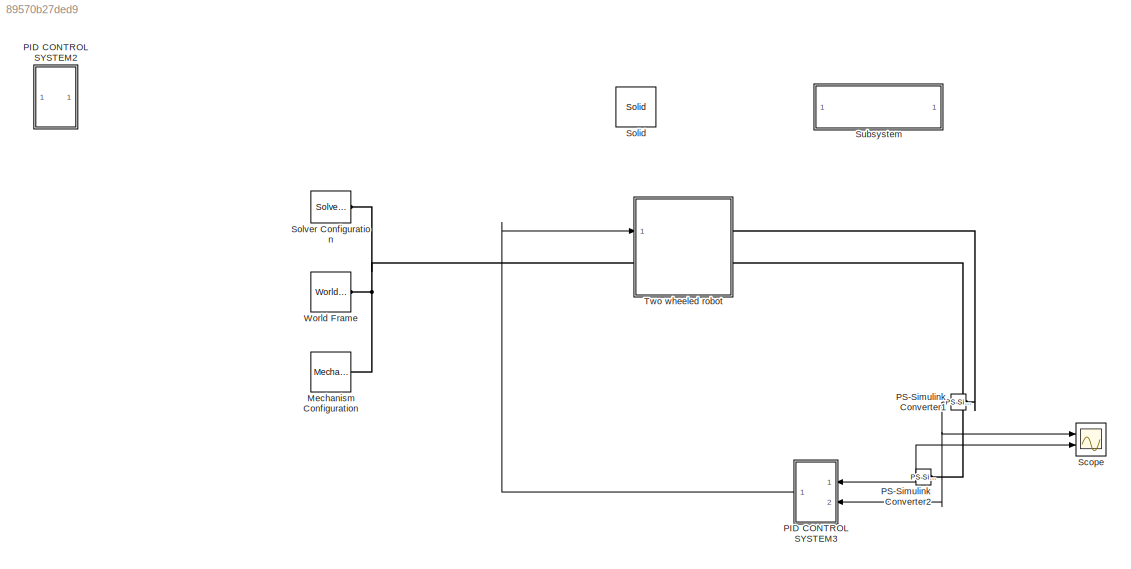
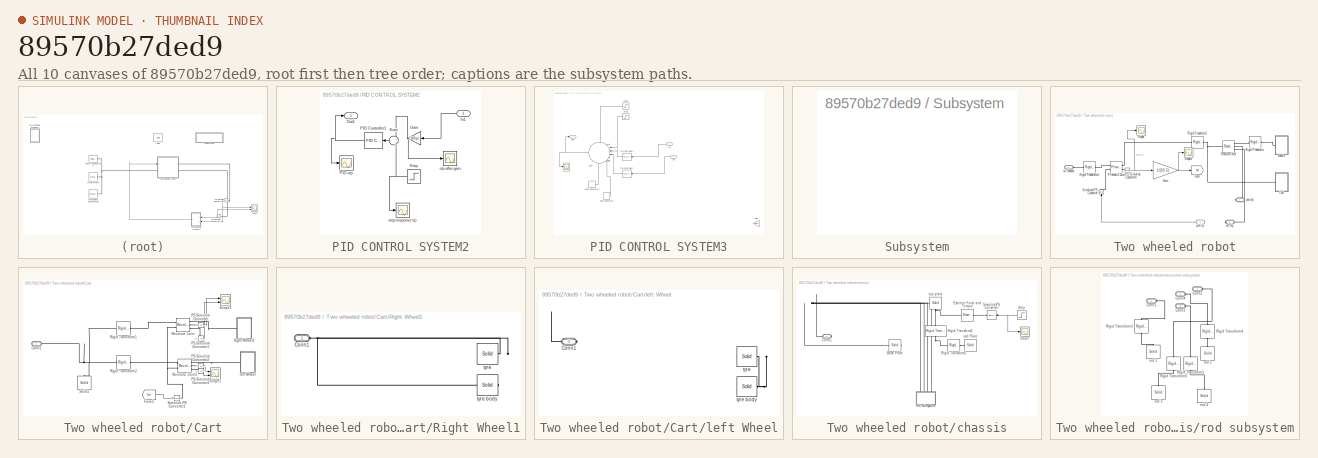
[diagram: thumbnail index - all 10 canvases of the model, root first then tree order]
MODEL slx_89570b27ded9
KIND model
CONFIG AbsTol = auto
CONFIG EnableMultiTasking = on
CONFIG FixedStep = auto
CONFIG MaxStep = auto
CONFIG MinStep = auto
CONFIG RelTol = 1e-3
CONFIG SampleTimeConstraint = Unconstrained
CONFIG Solver = VariableStepAuto
CONFIG SolverName = VariableStepAuto
CONFIG StartTime = 0.0
CONFIG StopTime = 10
BLOCK [Reference] Mechanism Configuration  REF=sm_lib/Utilities/Mechanism
Configuration
  Ports = [0, 0, 0, 0, 0, 0, 1]
  SourceBlock = sm_lib/Utilities/Mechanism\nConfiguration
  SourceProductBaseCode = MS
  SourceProductName = Simscape Multibody
  SourceType = Mechanism\nConfiguration
BLOCK [SubSystem] PID CONTROL SYSTEM2
  Commented = on
  Ports = [1, 1]
  RequestExecContextInheritance = off
BLOCK [Scope] PID CONTROL SYSTEM2/	PID o//p
  Floating = off
  NumInputPorts = 1
  Ports = [1]
  ScopeSpecificationString = Simulink.scopes.TimeScopeBlockCfg('CurrentConfiguration', extmgr.ConfigurationSet(extmgr.Configuration('Core','General UI',true),extmgr.Configuration('Core','Source UI',true),extmgr.Configuration('Sources','WiredSimulink',true),extmgr.Configuration('Visuals','Time Domain',true,'SerializedDisplays',{struct('MinYLimReal','-3135.24324','MaxYLimReal','3138.49141','YLabelReal','','MinYLimMag','  0.0000...<+1368ch>
BLOCK [Gain] PID CONTROL SYSTEM2/Gain
  Gain = 180/pi
  OutDataTypeStr = Inherit: Inherit via internal rule
  ParamDataTypeStr = Inherit: Inherit via internal rule
  SaturateOnIntegerOverflow = off
BLOCK [Inport] PID CONTROL SYSTEM2/In1
  IconDisplay = Port number
BLOCK [Outport] PID CONTROL SYSTEM2/Out1
  IconDisplay = Port number
BLOCK [Reference] PID CONTROL SYSTEM2/PID Controller1  REF=simulink/Continuous/PID Controller
  Ports = [1, 1]
  SourceBlock = simulink/Continuous/PID Controller
  SourceProductBaseCode = SL
  SourceProductName = Simulink
  SourceType = PID 1dof
BLOCK [Step] PID CONTROL SYSTEM2/Step
  After = 0
  Before = 1
  SampleTime = 0
  Time = 0.1
BLOCK [Sum] PID CONTROL SYSTEM2/Sum
  IconShape = round
  InputSameDT = off
  Inputs = -+
  OutDataTypeStr = Inherit: Inherit via internal rule
  Ports = [2, 1]
  SaturateOnIntegerOverflow = off
BLOCK [Scope] PID CONTROL SYSTEM2/o//p after gain 
  Floating = off
  NumInputPorts = 1
  Ports = [1]
  ScopeSpecificationString = Simulink.scopes.TimeScopeBlockCfg('CurrentConfiguration', extmgr.ConfigurationSet(extmgr.Configuration('Core','General UI',true),extmgr.Configuration('Core','Source UI',true),extmgr.Configuration('Sources','WiredSimulink',true,'DataLoggingVariableName','ScopeData2'),extmgr.Configuration('Visuals','Time Domain',true,'SerializedDisplays',{struct('MinYLimReal','-151.46736','MaxYLimReal','16.82971','Y...<+1404ch>
BLOCK [Scope] PID CONTROL SYSTEM2/step response i//p
  Floating = off
  NumInputPorts = 1
  Ports = [1]
  ScopeSpecificationString = Simulink.scopes.TimeScopeBlockCfg('CurrentConfiguration', extmgr.ConfigurationSet(extmgr.Configuration('Core','General UI',true),extmgr.Configuration('Core','Source UI',true),extmgr.Configuration('Sources','WiredSimulink',true,'DataLoggingVariableName','ScopeData3'),extmgr.Configuration('Visuals','Time Domain',true,'SerializedDisplays',{struct('MinYLimReal','-0.125','MaxYLimReal','1.125','YLabelRe...<+1351ch>
BLOCK [SubSystem] PID CONTROL SYSTEM3
  Ports = [2, 1]
  RequestExecContextInheritance = off
BLOCK [Scope] PID CONTROL SYSTEM3/	PID o//p
  Floating = off
  NumInputPorts = 1
  Ports = [1]
  ScopeSpecificationString = Simulink.scopes.TimeScopeBlockCfg('CurrentConfiguration', extmgr.ConfigurationSet(extmgr.Configuration('Core','General UI',true),extmgr.Configuration('Core','Source UI',true),extmgr.Configuration('Sources','WiredSimulink',true),extmgr.Configuration('Visuals','Time Domain',true,'SerializedDisplays',{struct('MinYLimReal','-3135.24324','MaxYLimReal','3138.49141','YLabelReal','','MinYLimMag','  0.0000...<+1368ch>
BLOCK [Gain] PID CONTROL SYSTEM3/Gain
  Commented = on
  Gain = 180/pi
  OutDataTypeStr = Inherit: Inherit via internal rule
  ParamDataTypeStr = Inherit: Inherit via internal rule
  SaturateOnIntegerOverflow = off
BLOCK [Inport] PID CONTROL SYSTEM3/In1
  IconDisplay = Port number
BLOCK [Inport] PID CONTROL SYSTEM3/In2
  IconDisplay = Port number
  Port = 2
BLOCK [Outport] PID CONTROL SYSTEM3/Out1
  IconDisplay = Port number
BLOCK [Reference] PID CONTROL SYSTEM3/PID Controller1  REF=simulink/Continuous/PID Controller
  Ports = [1, 1]
  SourceBlock = simulink/Continuous/PID Controller
  SourceProductBaseCode = SL
  SourceProductName = Simulink
  SourceType = PID 1dof
BLOCK [Reference] PID CONTROL SYSTEM3/PID Controller2  REF=simulink/Continuous/PID Controller
  Ports = [1, 1]
  SourceBlock = simulink/Continuous/PID Controller
  SourceProductBaseCode = SL
  SourceProductName = Simulink
  SourceType = PID 1dof
BLOCK [DiscretePulseGenerator] PID CONTROL SYSTEM3/Pulse Generator
  Amplitude = 1000
  Period = 10
  Ports = [0, 1]
  PulseType = Time based
  PulseWidth = 50
BLOCK [DiscretePulseGenerator] PID CONTROL SYSTEM3/Pulse Generator1
  Amplitude = -1000
  Period = 10
  PhaseDelay = 0.5
  Ports = [0, 1]
  PulseType = Time based
  PulseWidth = 50
BLOCK [Step] PID CONTROL SYSTEM3/Step
  After = 100
  SampleTime = 0
  Time = 0.5
BLOCK [Step] PID CONTROL SYSTEM3/Step1
  After = 0
  Before = 100
  SampleTime = 0
  Time = 0.1
BLOCK [Sum] PID CONTROL SYSTEM3/Sum
  IconShape = round
  InputSameDT = off
  Inputs = ++--++
  OutDataTypeStr = Inherit: Inherit via internal rule
  Ports = [6, 1]
  SaturateOnIntegerOverflow = off
BLOCK [Reference] PS-Simulink Converter1  REF=nesl_utility/PS-Simulink
Converter
  Ports = [0, 1, 0, 0, 0, 1]
  SourceBlock = nesl_utility/PS-Simulink\nConverter
  SourceProductBaseCode = SS
  SourceProductName = Simscape
  SourceType = PS-Simulink\nConverter
BLOCK [Reference] PS-Simulink Converter2  REF=nesl_utility/PS-Simulink
Converter
  Ports = [0, 1, 0, 0, 0, 1]
  SourceBlock = nesl_utility/PS-Simulink\nConverter
  SourceProductBaseCode = SS
  SourceProductName = Simscape
  SourceType = PS-Simulink\nConverter
BLOCK [Scope] Scope
  Floating = off
  NumInputPorts = 2
  Ports = [2]
  ScopeSpecificationString = Simulink.scopes.TimeScopeBlockCfg('CurrentConfiguration', extmgr.ConfigurationSet(extmgr.Configuration('Core','General UI',true),extmgr.Configuration('Core','Source UI',true),extmgr.Configuration('Sources','WiredSimulink',true,'DataLoggingVariableName','ScopeData1'),extmgr.Configuration('Visuals','Time Domain',true,'SerializedDisplays',{struct('MinYLimReal','-0.04495','MaxYLimReal','0.04905','YLab...<+2151ch>
BLOCK [Reference] Solid  REF=sm_lib/Body Elements/Solid
  Commented = on
  Ports = [0, 0, 0, 0, 0, 0, 1]
  SourceBlock = sm_lib/Body Elements/Solid
  SourceProductBaseCode = MS
  SourceProductName = Simscape Multibody
  SourceType = Solid
BLOCK [Reference] Solver Configuration  REF=nesl_utility/Solver
Configuration
  Ports = [0, 0, 0, 0, 0, 0, 1]
  SourceBlock = nesl_utility/Solver\nConfiguration
  SourceProductBaseCode = SS
  SourceProductName = Simscape
  SourceType = Solver\nConfiguration
BLOCK [SubSystem] Subsystem
  Commented = on
  OpenFcn = open_system('sm_lib')
  Ports = []
  RequestExecContextInheritance = off
  ShowPortLabels = none
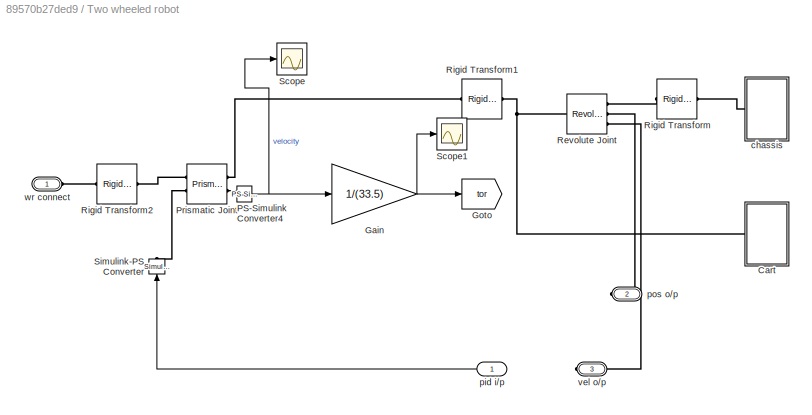
BLOCK [SubSystem] Two wheeled robot
  Ports = [1, 0, 0, 0, 0, 1, 2]
  RequestExecContextInheritance = off
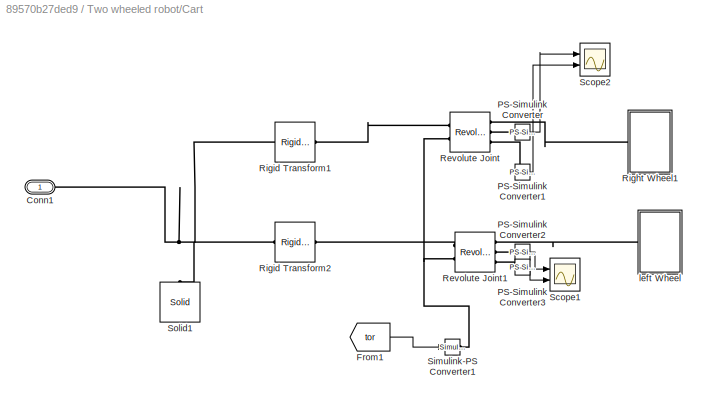
BLOCK [SubSystem] Two wheeled robot/Cart
  Ports = [0, 0, 0, 0, 0, 1]
  RequestExecContextInheritance = off
BLOCK [PMIOPort] Two wheeled robot/Cart/Conn1
  Side = Left
BLOCK [From] Two wheeled robot/Cart/From1
  GotoTag = tor
  TagVisibility = global
BLOCK [Reference] Two wheeled robot/Cart/PS-Simulink Converter  REF=nesl_utility/PS-Simulink
Converter
  Ports = [0, 1, 0, 0, 0, 1]
  SourceBlock = nesl_utility/PS-Simulink\nConverter
  SourceProductBaseCode = SS
  SourceProductName = Simscape
  SourceType = PS-Simulink\nConverter
BLOCK [Reference] Two wheeled robot/Cart/PS-Simulink Converter1  REF=nesl_utility/PS-Simulink
Converter
  Ports = [0, 1, 0, 0, 0, 1]
  SourceBlock = nesl_utility/PS-Simulink\nConverter
  SourceProductBaseCode = SS
  SourceProductName = Simscape
  SourceType = PS-Simulink\nConverter
BLOCK [Reference] Two wheeled robot/Cart/PS-Simulink Converter2  REF=nesl_utility/PS-Simulink
Converter
  Ports = [0, 1, 0, 0, 0, 1]
  SourceBlock = nesl_utility/PS-Simulink\nConverter
  SourceProductBaseCode = SS
  SourceProductName = Simscape
  SourceType = PS-Simulink\nConverter
BLOCK [Reference] Two wheeled robot/Cart/PS-Simulink Converter3  REF=nesl_utility/PS-Simulink
Converter
  Ports = [0, 1, 0, 0, 0, 1]
  SourceBlock = nesl_utility/PS-Simulink\nConverter
  SourceProductBaseCode = SS
  SourceProductName = Simscape
  SourceType = PS-Simulink\nConverter
BLOCK [Reference] Two wheeled robot/Cart/Revolute Joint  REF=sm_lib/Joints/Revolute Joint
  Ports = [0, 0, 0, 0, 0, 2, 3]
  SourceBlock = sm_lib/Joints/Revolute Joint
  SourceProductBaseCode = MS
  SourceProductName = Simscape Multibody
  SourceType = Revolute Joint
BLOCK [Reference] Two wheeled robot/Cart/Revolute Joint1  REF=sm_lib/Joints/Revolute Joint
  Ports = [0, 0, 0, 0, 0, 2, 3]
  SourceBlock = sm_lib/Joints/Revolute Joint
  SourceProductBaseCode = MS
  SourceProductName = Simscape Multibody
  SourceType = Revolute Joint
BLOCK [SubSystem] Two wheeled robot/Cart/Right Wheel1
  Ports = [0, 0, 0, 0, 0, 1]
  RequestExecContextInheritance = off
BLOCK [PMIOPort] Two wheeled robot/Cart/Right Wheel1/Conn1
  Side = Left
BLOCK [Reference] Two wheeled robot/Cart/Right Wheel1/tyre  REF=sm_lib/Body Elements/Solid
  Ports = [0, 0, 0, 0, 0, 0, 1]
  SourceBlock = sm_lib/Body Elements/Solid
  SourceProductBaseCode = MS
  SourceProductName = Simscape Multibody
  SourceType = Solid
BLOCK [Reference] Two wheeled robot/Cart/Right Wheel1/tyre body  REF=sm_lib/Body Elements/Solid
  Ports = [0, 0, 0, 0, 0, 0, 1]
  SourceBlock = sm_lib/Body Elements/Solid
  SourceProductBaseCode = MS
  SourceProductName = Simscape Multibody
  SourceType = Solid
BLOCK [Reference] Two wheeled robot/Cart/Rigid Transform1  REF=sm_lib/Frames and
Transforms/Rigid
Transform
  Ports = [0, 0, 0, 0, 0, 1, 1]
  SourceBlock = sm_lib/Frames and\nTransforms/Rigid\nTransform
  SourceProductBaseCode = MS
  SourceProductName = Simscape Multibody
  SourceType = Rigid\nTransform
BLOCK [Reference] Two wheeled robot/Cart/Rigid Transform2  REF=sm_lib/Frames and
Transforms/Rigid
Transform
  Ports = [0, 0, 0, 0, 0, 1, 1]
  SourceBlock = sm_lib/Frames and\nTransforms/Rigid\nTransform
  SourceProductBaseCode = MS
  SourceProductName = Simscape Multibody
  SourceType = Rigid\nTransform
BLOCK [Scope] Two wheeled robot/Cart/Scope1
  Floating = off
  NumInputPorts = 2
  Ports = [2]
  ScopeSpecificationString = Simulink.scopes.TimeScopeBlockCfg('CurrentConfiguration', extmgr.ConfigurationSet(extmgr.Configuration('Core','General UI',true),extmgr.Configuration('Core','Source UI',true),extmgr.Configuration('Sources','WiredSimulink',true,'DataLoggingVariableName','ScopeData2'),extmgr.Configuration('Visuals','Time Domain',true),extmgr.Configuration('Tools','Plot Navigation',true),extmgr.Configuration('Tools',...<+40ch>
BLOCK [Scope] Two wheeled robot/Cart/Scope2
  Floating = off
  NumInputPorts = 2
  Ports = [2]
  ScopeSpecificationString = Simulink.scopes.TimeScopeBlockCfg('CurrentConfiguration', extmgr.ConfigurationSet(extmgr.Configuration('Core','General UI',true),extmgr.Configuration('Core','Source UI',true),extmgr.Configuration('Sources','WiredSimulink',true,'DataLoggingVariableName','ScopeData1'),extmgr.Configuration('Visuals','Time Domain',true,'SerializedDisplays',{struct('MinYLimReal','-60.2276','MaxYLimReal','6.81515','YLab...<+2098ch>
BLOCK [Reference] Two wheeled robot/Cart/Simulink-PS Converter1  REF=nesl_utility/Simulink-PS
Converter
  Ports = [1, 0, 0, 0, 0, 0, 1]
  SourceBlock = nesl_utility/Simulink-PS\nConverter
  SourceProductBaseCode = SS
  SourceProductName = Simscape
  SourceType = Simulink-PS\nConverter
BLOCK [Reference] Two wheeled robot/Cart/Solid1  REF=sm_lib/Body Elements/Solid
  Ports = [0, 0, 0, 0, 0, 0, 1]
  SourceBlock = sm_lib/Body Elements/Solid
  SourceProductBaseCode = MS
  SourceProductName = Simscape Multibody
  SourceType = Solid
BLOCK [SubSystem] Two wheeled robot/Cart/left Wheel
  Ports = [0, 0, 0, 0, 0, 1]
  RequestExecContextInheritance = off
BLOCK [PMIOPort] Two wheeled robot/Cart/left Wheel/Conn1
  Side = Left
BLOCK [Reference] Two wheeled robot/Cart/left Wheel/tyre  REF=sm_lib/Body Elements/Solid
  Ports = [0, 0, 0, 0, 0, 0, 1]
  SourceBlock = sm_lib/Body Elements/Solid
  SourceProductBaseCode = MS
  SourceProductName = Simscape Multibody
  SourceType = Solid
BLOCK [Reference] Two wheeled robot/Cart/left Wheel/tyre body  REF=sm_lib/Body Elements/Solid
  Ports = [0, 0, 0, 0, 0, 0, 1]
  SourceBlock = sm_lib/Body Elements/Solid
  SourceProductBaseCode = MS
  SourceProductName = Simscape Multibody
  SourceType = Solid
BLOCK [Gain] Two wheeled robot/Gain
  Gain = 1/(33.5)
  OutDataTypeStr = Inherit: Inherit via internal rule
  ParamDataTypeStr = Inherit: Inherit via internal rule
  SaturateOnIntegerOverflow = off
BLOCK [Goto] Two wheeled robot/Goto
  GotoTag = tor
  TagVisibility = global
BLOCK [Reference] Two wheeled robot/PS-Simulink Converter4  REF=nesl_utility/PS-Simulink
Converter
  Ports = [0, 1, 0, 0, 0, 1]
  SourceBlock = nesl_utility/PS-Simulink\nConverter
  SourceProductBaseCode = SS
  SourceProductName = Simscape
  SourceType = PS-Simulink\nConverter
BLOCK [Reference] Two wheeled robot/Prismatic Joint  REF=sm_lib/Joints/Prismatic
Joint
  Ports = [0, 0, 0, 0, 0, 2, 2]
  SourceBlock = sm_lib/Joints/Prismatic\nJoint
  SourceProductBaseCode = MS
  SourceProductName = Simscape Multibody
  SourceType = Prismatic\nJoint
BLOCK [Reference] Two wheeled robot/Revolute Joint  REF=sm_lib/Joints/Revolute Joint
  Ports = [0, 0, 0, 0, 0, 1, 3]
  SourceBlock = sm_lib/Joints/Revolute Joint
  SourceProductBaseCode = MS
  SourceProductName = Simscape Multibody
  SourceType = Revolute Joint
BLOCK [Reference] Two wheeled robot/Rigid Transform  REF=sm_lib/Frames and
Transforms/Rigid
Transform
  Ports = [0, 0, 0, 0, 0, 1, 1]
  SourceBlock = sm_lib/Frames and\nTransforms/Rigid\nTransform
  SourceProductBaseCode = MS
  SourceProductName = Simscape Multibody
  SourceType = Rigid\nTransform
BLOCK [Reference] Two wheeled robot/Rigid Transform1  REF=sm_lib/Frames and
Transforms/Rigid
Transform
  Ports = [0, 0, 0, 0, 0, 1, 1]
  SourceBlock = sm_lib/Frames and\nTransforms/Rigid\nTransform
  SourceProductBaseCode = MS
  SourceProductName = Simscape Multibody
  SourceType = Rigid\nTransform
BLOCK [Reference] Two wheeled robot/Rigid Transform2  REF=sm_lib/Frames and
Transforms/Rigid
Transform
  Ports = [0, 0, 0, 0, 0, 1, 1]
  SourceBlock = sm_lib/Frames and\nTransforms/Rigid\nTransform
  SourceProductBaseCode = MS
  SourceProductName = Simscape Multibody
  SourceType = Rigid\nTransform
BLOCK [Scope] Two wheeled robot/Scope
  Floating = off
  NumInputPorts = 1
  Ports = [1]
  ScopeSpecificationString = Simulink.scopes.TimeScopeBlockCfg('CurrentConfiguration', extmgr.ConfigurationSet(extmgr.Configuration('Core','General UI',true),extmgr.Configuration('Core','Source UI',true),extmgr.Configuration('Sources','WiredSimulink',true,'DataLoggingVariableName','ScopeData1'),extmgr.Configuration('Visuals','Time Domain',true,'SerializedDisplays',{struct('MinYLimReal','-1.57058','MaxYLimReal','2.12864','YLab...<+1419ch>
BLOCK [Scope] Two wheeled robot/Scope1
  Floating = off
  NumInputPorts = 1
  Ports = [1]
  ScopeSpecificationString = Simulink.scopes.TimeScopeBlockCfg('CurrentConfiguration', extmgr.ConfigurationSet(extmgr.Configuration('Core','General UI',true),extmgr.Configuration('Core','Source UI',true),extmgr.Configuration('Sources','WiredSimulink',true,'DataLoggingVariableName','ScopeData2'),extmgr.Configuration('Visuals','Time Domain',true,'SerializedDisplays',{struct('MinYLimReal','-0.04688','MaxYLimReal','0.06354','YLab...<+1440ch>
BLOCK [Reference] Two wheeled robot/Simulink-PS Converter  REF=nesl_utility/Simulink-PS
Converter
  Ports = [1, 0, 0, 0, 0, 0, 1]
  SourceBlock = nesl_utility/Simulink-PS\nConverter
  SourceProductBaseCode = SS
  SourceProductName = Simscape
  SourceType = Simulink-PS\nConverter
BLOCK [SubSystem] Two wheeled robot/chassis
  Ports = [0, 0, 0, 0, 0, 1]
  RequestExecContextInheritance = off
BLOCK [Reference] Two wheeled robot/chassis/Base Plate  REF=sm_lib/Body Elements/Solid
  Ports = [0, 0, 0, 0, 0, 0, 1]
  SourceBlock = sm_lib/Body Elements/Solid
  SourceProductBaseCode = MS
  SourceProductName = Simscape Multibody
  SourceType = Solid
BLOCK [PMIOPort] Two wheeled robot/chassis/Conn1
  Side = Left
BLOCK [Reference] Two wheeled robot/chassis/External Force and Torque  REF=sm_lib/Forces and
Torques/External Force
and Torque
  Commented = on
  Ports = [0, 0, 0, 0, 0, 1, 1]
  SourceBlock = sm_lib/Forces and\nTorques/External Force\nand Torque
  SourceProductBaseCode = MS
  SourceProductName = Simscape Multibody
  SourceType = External Force\nand Torque
BLOCK [Reference] Two wheeled robot/chassis/Rigid Transform1  REF=sm_lib/Frames and
Transforms/Rigid
Transform
  Ports = [0, 0, 0, 0, 0, 1, 1]
  SourceBlock = sm_lib/Frames and\nTransforms/Rigid\nTransform
  SourceProductBaseCode = MS
  SourceProductName = Simscape Multibody
  SourceType = Rigid\nTransform
BLOCK [Reference] Two wheeled robot/chassis/Rigid Transform2  REF=sm_lib/Frames and
Transforms/Rigid
Transform
  Ports = [0, 0, 0, 0, 0, 1, 1]
  SourceBlock = sm_lib/Frames and\nTransforms/Rigid\nTransform
  SourceProductBaseCode = MS
  SourceProductName = Simscape Multibody
  SourceType = Rigid\nTransform
BLOCK [Scope] Two wheeled robot/chassis/Scope
  Commented = on
  Floating = off
  NumInputPorts = 1
  Ports = [1]
  ScopeSpecificationString = Simulink.scopes.TimeScopeBlockCfg('CurrentConfiguration', extmgr.ConfigurationSet(extmgr.Configuration('Core','General UI',true),extmgr.Configuration('Core','Source UI',true),extmgr.Configuration('Sources','WiredSimulink',true,'DataLoggingVariableName','ScopeData1'),extmgr.Configuration('Visuals','Time Domain',true,'SerializedDisplays',{struct('MinYLimReal','-0.125','MaxYLimReal','1.125','YLabelRe...<+1351ch>
BLOCK [Reference] Two wheeled robot/chassis/Simulink-PS Converter  REF=nesl_utility/Simulink-PS
Converter
  Commented = on
  Ports = [1, 0, 0, 0, 0, 0, 1]
  SourceBlock = nesl_utility/Simulink-PS\nConverter
  SourceProductBaseCode = SS
  SourceProductName = Simscape
  SourceType = Simulink-PS\nConverter
BLOCK [Step] Two wheeled robot/chassis/Step
  After = 0
  Before = 1
  Commented = on
  SampleTime = 0
  Time = 0.01
BLOCK [Reference] Two wheeled robot/chassis/mid Plate  REF=sm_lib/Body Elements/Solid
  Ports = [0, 0, 0, 0, 0, 0, 1]
  SourceBlock = sm_lib/Body Elements/Solid
  SourceProductBaseCode = MS
  SourceProductName = Simscape Multibody
  SourceType = Solid
BLOCK [SubSystem] Two wheeled robot/chassis/rod subsystem
  Ports = [0, 0, 0, 0, 0, 4]
  RequestExecContextInheritance = off
BLOCK [PMIOPort] Two wheeled robot/chassis/rod subsystem/Conn1
  Side = Left
BLOCK [PMIOPort] Two wheeled robot/chassis/rod subsystem/Conn2
  Port = 2
  Side = Left
BLOCK [PMIOPort] Two wheeled robot/chassis/rod subsystem/Conn3
  Port = 3
  Side = Left
BLOCK [PMIOPort] Two wheeled robot/chassis/rod subsystem/Conn4
  Port = 4
  Side = Left
BLOCK [Reference] Two wheeled robot/chassis/rod subsystem/Rigid Transform3  REF=sm_lib/Frames and
Transforms/Rigid
Transform
  Ports = [0, 0, 0, 0, 0, 1, 1]
  SourceBlock = sm_lib/Frames and\nTransforms/Rigid\nTransform
  SourceProductBaseCode = MS
  SourceProductName = Simscape Multibody
  SourceType = Rigid\nTransform
BLOCK [Reference] Two wheeled robot/chassis/rod subsystem/Rigid Transform4  REF=sm_lib/Frames and
Transforms/Rigid
Transform
  Ports = [0, 0, 0, 0, 0, 1, 1]
  SourceBlock = sm_lib/Frames and\nTransforms/Rigid\nTransform
  SourceProductBaseCode = MS
  SourceProductName = Simscape Multibody
  SourceType = Rigid\nTransform
BLOCK [Reference] Two wheeled robot/chassis/rod subsystem/Rigid Transform5  REF=sm_lib/Frames and
Transforms/Rigid
Transform
  Ports = [0, 0, 0, 0, 0, 1, 1]
  SourceBlock = sm_lib/Frames and\nTransforms/Rigid\nTransform
  SourceProductBaseCode = MS
  SourceProductName = Simscape Multibody
  SourceType = Rigid\nTransform
BLOCK [Reference] Two wheeled robot/chassis/rod subsystem/Rigid Transform6  REF=sm_lib/Frames and
Transforms/Rigid
Transform
  Ports = [0, 0, 0, 0, 0, 1, 1]
  SourceBlock = sm_lib/Frames and\nTransforms/Rigid\nTransform
  SourceProductBaseCode = MS
  SourceProductName = Simscape Multibody
  SourceType = Rigid\nTransform
BLOCK [Reference] Two wheeled robot/chassis/rod subsystem/rod 1  REF=sm_lib/Body Elements/Solid
  Ports = [0, 0, 0, 0, 0, 0, 1]
  SourceBlock = sm_lib/Body Elements/Solid
  SourceProductBaseCode = MS
  SourceProductName = Simscape Multibody
  SourceType = Solid
BLOCK [Reference] Two wheeled robot/chassis/rod subsystem/rod 2  REF=sm_lib/Body Elements/Solid
  Ports = [0, 0, 0, 0, 0, 0, 1]
  SourceBlock = sm_lib/Body Elements/Solid
  SourceProductBaseCode = MS
  SourceProductName = Simscape Multibody
  SourceType = Solid
BLOCK [Reference] Two wheeled robot/chassis/rod subsystem/rod 3  REF=sm_lib/Body Elements/Solid
  Ports = [0, 0, 0, 0, 0, 0, 1]
  SourceBlock = sm_lib/Body Elements/Solid
  SourceProductBaseCode = MS
  SourceProductName = Simscape Multibody
  SourceType = Solid
BLOCK [Reference] Two wheeled robot/chassis/rod subsystem/rod 4  REF=sm_lib/Body Elements/Solid
  Ports = [0, 0, 0, 0, 0, 0, 1]
  SourceBlock = sm_lib/Body Elements/Solid
  SourceProductBaseCode = MS
  SourceProductName = Simscape Multibody
  SourceType = Solid
BLOCK [Reference] Two wheeled robot/chassis/top plate  REF=sm_lib/Body Elements/Solid
  Ports = [0, 0, 0, 0, 0, 0, 1]
  SourceBlock = sm_lib/Body Elements/Solid
  SourceProductBaseCode = MS
  SourceProductName = Simscape Multibody
  SourceType = Solid
BLOCK [Inport] Two wheeled robot/pid i//p
  IconDisplay = Port number
BLOCK [PMIOPort] Two wheeled robot/pos o//p
  Port = 2
  Side = Right
BLOCK [PMIOPort] Two wheeled robot/vel o//p
  Port = 3
  Side = Right
BLOCK [PMIOPort] Two wheeled robot/wr connect
  Side = Left
BLOCK [Reference] World Frame  REF=sm_lib/Frames and
Transforms/World Frame
  Ports = [0, 0, 0, 0, 0, 0, 1]
  SourceBlock = sm_lib/Frames and\nTransforms/World Frame
  SourceProductBaseCode = MS
  SourceProductName = Simscape Multibody
  SourceType = World Frame
NET PID CONTROL SYSTEM2/Gain:1 -> PID CONTROL SYSTEM2/Sum:1, PID CONTROL SYSTEM2/o//p after gain :1
LINE PID CONTROL SYSTEM2/In1:1 -> PID CONTROL SYSTEM2/Gain:1
NET PID CONTROL SYSTEM2/PID Controller1:1 -> PID CONTROL SYSTEM2/	PID o//p:1, PID CONTROL SYSTEM2/Out1:1
NET PID CONTROL SYSTEM2/Step:1 -> PID CONTROL SYSTEM2/Sum:2, PID CONTROL SYSTEM2/step response i//p:1
LINE PID CONTROL SYSTEM2/Sum:1 -> PID CONTROL SYSTEM2/PID Controller1:1
LINE PID CONTROL SYSTEM3/In1:1 -> PID CONTROL SYSTEM3/PID Controller1:1
LINE PID CONTROL SYSTEM3/In2:1 -> PID CONTROL SYSTEM3/PID Controller2:1
LINE PID CONTROL SYSTEM3/PID Controller1:1 -> PID CONTROL SYSTEM3/Sum:3
LINE PID CONTROL SYSTEM3/PID Controller2:1 -> PID CONTROL SYSTEM3/Sum:4
LINE PID CONTROL SYSTEM3/Pulse Generator1:1 -> PID CONTROL SYSTEM3/Sum:6
LINE PID CONTROL SYSTEM3/Pulse Generator:1 -> PID CONTROL SYSTEM3/Sum:5
LINE PID CONTROL SYSTEM3/Step1:1 -> PID CONTROL SYSTEM3/Sum:1
LINE PID CONTROL SYSTEM3/Step:1 -> PID CONTROL SYSTEM3/Sum:2
NET PID CONTROL SYSTEM3/Sum:1 -> PID CONTROL SYSTEM3/	PID o//p:1, PID CONTROL SYSTEM3/Out1:1
LINE PID CONTROL SYSTEM3:1 -> Two wheeled robot:1
NET PS-Simulink Converter1:1 -> PID CONTROL SYSTEM3:2, Scope:1
NET PS-Simulink Converter2:1 -> PID CONTROL SYSTEM3:1, Scope:2
LINE Two wheeled robot/Cart/From1:1 -> Two wheeled robot/Cart/Simulink-PS Converter1:1
LINE Two wheeled robot/Cart/PS-Simulink Converter1:1 -> Two wheeled robot/Cart/Scope2:2
LINE Two wheeled robot/Cart/PS-Simulink Converter2:1 -> Two wheeled robot/Cart/Scope1:1
LINE Two wheeled robot/Cart/PS-Simulink Converter3:1 -> Two wheeled robot/Cart/Scope1:2
LINE Two wheeled robot/Cart/PS-Simulink Converter:1 -> Two wheeled robot/Cart/Scope2:1
NET Two wheeled robot/Gain:1 -> Two wheeled robot/Goto:1, Two wheeled robot/Scope1:1
NET Two wheeled robot/PS-Simulink Converter4:1 -> Two wheeled robot/Gain:1, Two wheeled robot/Scope:1
NET Two wheeled robot/chassis/Step:1 -> Two wheeled robot/chassis/Scope:1, Two wheeled robot/chassis/Simulink-PS Converter:1
LINE Two wheeled robot/pid i//p:1 -> Two wheeled robot/Simulink-PS Converter:1
PNET net1: Mechanism Configuration:RConn1 -- Solver Configuration:RConn1 -- Two wheeled robot:LConn1 -- World Frame:RConn1
PLINE PS-Simulink Converter1:LConn1 -- Two wheeled robot:RConn1
PLINE PS-Simulink Converter2:LConn1 -- Two wheeled robot:RConn2
PNET net2: Two wheeled robot/Cart/Conn1:RConn1 -- Two wheeled robot/Cart/Rigid Transform1:LConn1 -- Two wheeled robot/Cart/Rigid Transform2:LConn1 -- Two wheeled robot/Cart/Solid1:RConn1
PLINE Two wheeled robot/Cart/PS-Simulink Converter1:LConn1 -- Two wheeled robot/Cart/Revolute Joint:RConn3
PLINE Two wheeled robot/Cart/PS-Simulink Converter2:LConn1 -- Two wheeled robot/Cart/Revolute Joint1:RConn2
PLINE Two wheeled robot/Cart/PS-Simulink Converter3:LConn1 -- Two wheeled robot/Cart/Revolute Joint1:RConn3
PLINE Two wheeled robot/Cart/PS-Simulink Converter:LConn1 -- Two wheeled robot/Cart/Revolute Joint:RConn2
PLINE Two wheeled robot/Cart/Revolute Joint1:LConn1 -- Two wheeled robot/Cart/Rigid Transform2:RConn1
PNET net3: Two wheeled robot/Cart/Revolute Joint1:LConn2 -- Two wheeled robot/Cart/Revolute Joint:LConn2 -- Two wheeled robot/Cart/Simulink-PS Converter1:RConn1
PLINE Two wheeled robot/Cart/Revolute Joint1:RConn1 -- Two wheeled robot/Cart/left Wheel:LConn1
PLINE Two wheeled robot/Cart/Revolute Joint:LConn1 -- Two wheeled robot/Cart/Rigid Transform1:RConn1
PLINE Two wheeled robot/Cart/Revolute Joint:RConn1 -- Two wheeled robot/Cart/Right Wheel1:LConn1
PNET net4: Two wheeled robot/Cart/Right Wheel1/Conn1:RConn1 -- Two wheeled robot/Cart/Right Wheel1/tyre body:RConn1 -- Two wheeled robot/Cart/Right Wheel1/tyre:RConn1
PNET net5: Two wheeled robot/Cart/left Wheel/Conn1:RConn1 -- Two wheeled robot/Cart/left Wheel/tyre body:RConn1 -- Two wheeled robot/Cart/left Wheel/tyre:RConn1
PNET net6: Two wheeled robot/Cart:LConn1 -- Two wheeled robot/Revolute Joint:LConn1 -- Two wheeled robot/Rigid Transform1:RConn1
PLINE Two wheeled robot/PS-Simulink Converter4:LConn1 -- Two wheeled robot/Prismatic Joint:RConn2
PLINE Two wheeled robot/Prismatic Joint:LConn1 -- Two wheeled robot/Rigid Transform2:RConn1
PLINE Two wheeled robot/Prismatic Joint:LConn2 -- Two wheeled robot/Simulink-PS Converter:RConn1
PLINE Two wheeled robot/Prismatic Joint:RConn1 -- Two wheeled robot/Rigid Transform1:LConn1
PLINE Two wheeled robot/Revolute Joint:RConn1 -- Two wheeled robot/Rigid Transform:LConn1
PLINE Two wheeled robot/Revolute Joint:RConn2 -- Two wheeled robot/pos o//p:RConn1
PLINE Two wheeled robot/Revolute Joint:RConn3 -- Two wheeled robot/vel o//p:RConn1
PLINE Two wheeled robot/Rigid Transform2:LConn1 -- Two wheeled robot/wr connect:RConn1
PLINE Two wheeled robot/Rigid Transform:RConn1 -- Two wheeled robot/chassis:LConn1
PNET net7: Two wheeled robot/chassis/Base Plate:RConn1 -- Two wheeled robot/chassis/Conn1:RConn1 -- Two wheeled robot/chassis/Rigid Transform1:LConn1 -- Two wheeled robot/chassis/Rigid Transform2:LConn1 -- Two wheeled robot/chassis/rod subsystem:LConn1 -- Two wheeled robot/chassis/rod subsystem:LConn2 -- Two wheeled robot/chassis/rod subsystem:LConn3 -- Two wheeled robot/chassis/rod subsystem:LConn4
PLINE Two wheeled robot/chassis/External Force and Torque:LConn1 -- Two wheeled robot/chassis/Simulink-PS Converter:RConn1
PNET net8: Two wheeled robot/chassis/External Force and Torque:RConn1 -- Two wheeled robot/chassis/Rigid Transform2:RConn1 -- Two wheeled robot/chassis/top plate:RConn1
PLINE Two wheeled robot/chassis/Rigid Transform1:RConn1 -- Two wheeled robot/chassis/mid Plate:RConn1
PLINE Two wheeled robot/chassis/rod subsystem/Conn1:RConn1 -- Two wheeled robot/chassis/rod subsystem/Rigid Transform3:LConn1
PLINE Two wheeled robot/chassis/rod subsystem/Conn2:RConn1 -- Two wheeled robot/chassis/rod subsystem/Rigid Transform6:LConn1
PLINE Two wheeled robot/chassis/rod subsystem/Conn3:RConn1 -- Two wheeled robot/chassis/rod subsystem/Rigid Transform5:LConn1
PLINE Two wheeled robot/chassis/rod subsystem/Conn4:RConn1 -- Two wheeled robot/chassis/rod subsystem/Rigid Transform4:LConn1
PLINE Two wheeled robot/chassis/rod subsystem/Rigid Transform3:RConn1 -- Two wheeled robot/chassis/rod subsystem/rod 1:RConn1
PLINE Two wheeled robot/chassis/rod subsystem/Rigid Transform4:RConn1 -- Two wheeled robot/chassis/rod subsystem/rod 2:RConn1
PLINE Two wheeled robot/chassis/rod subsystem/Rigid Transform5:RConn1 -- Two wheeled robot/chassis/rod subsystem/rod 4:RConn1
PLINE Two wheeled robot/chassis/rod subsystem/Rigid Transform6:RConn1 -- Two wheeled robot/chassis/rod subsystem/rod 3:RConn1
note: NET lines group one-source signal fan-out (src -> all destinations, sorted); 1:1 wires keep LINE; PNET lines group multi-terminal physical nets as a canonical sorted terminal list (undirected conserving connections); 2-terminal nets keep the pairwise PLINE form
